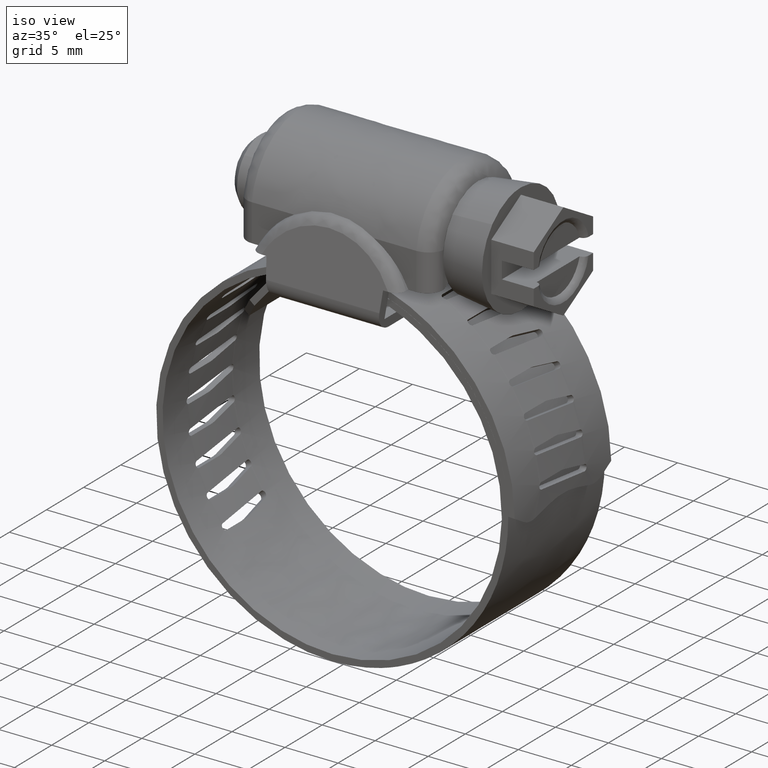
[diagram: clean part render]
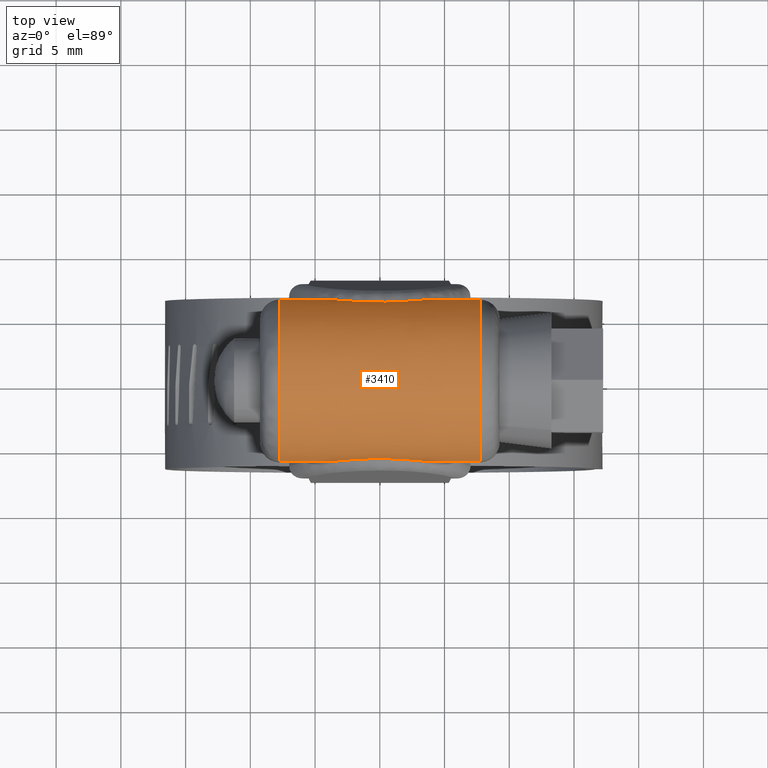
[diagram: tour spotlight — one face highlighted and labeled with its STEP entity id]
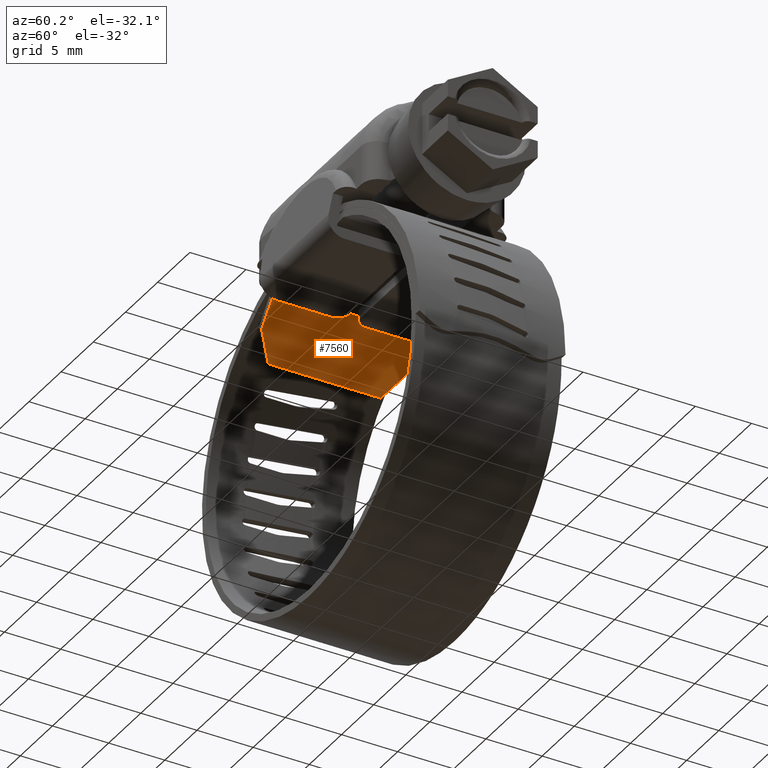
[diagram: tour spotlight — one face highlighted and labeled with its STEP entity id]
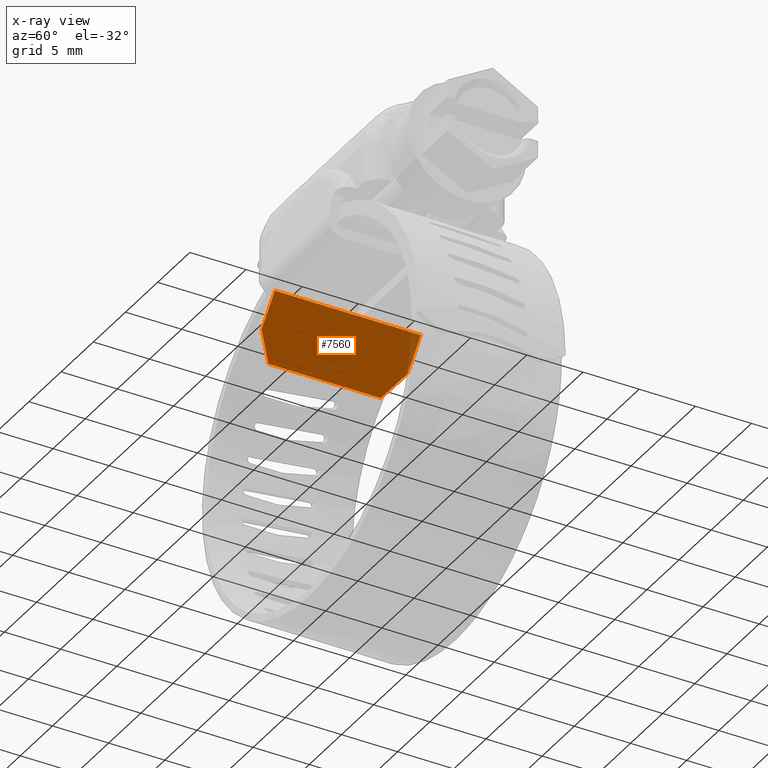
[diagram: x-ray of the same camera — body ghosted, this tour face saturated]
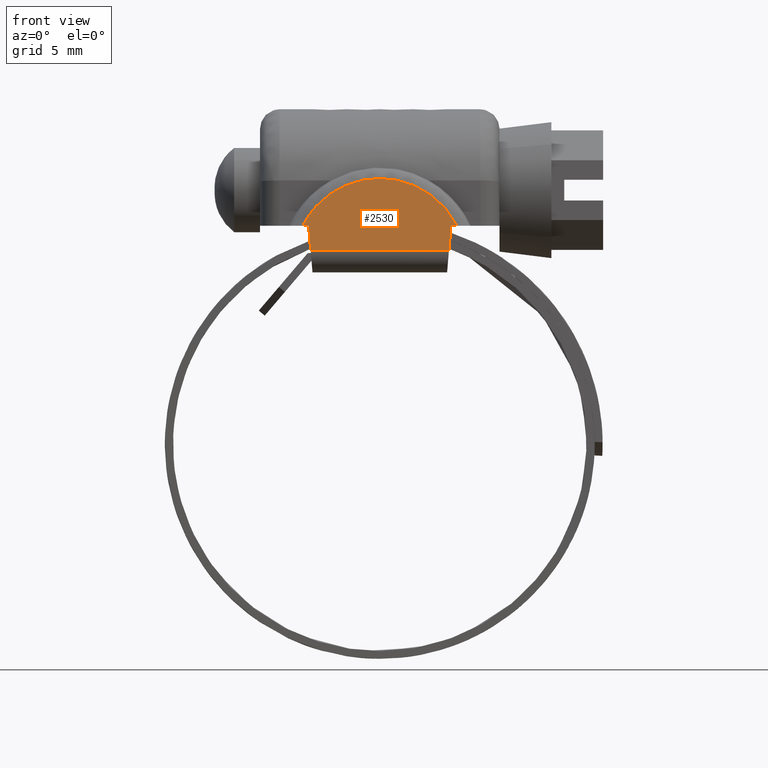
[diagram: tour spotlight — one face highlighted and labeled with its STEP entity id]
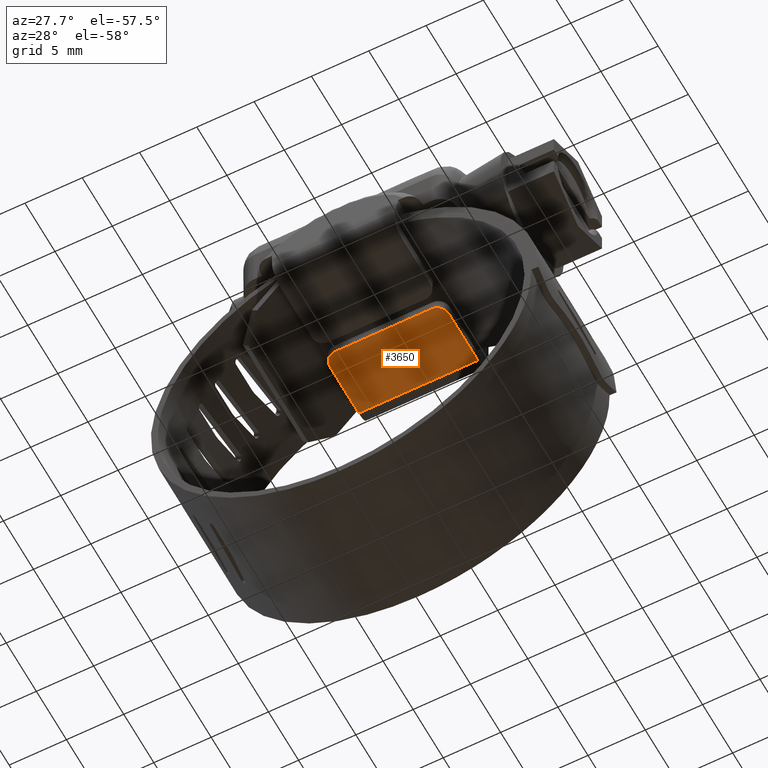
[diagram: tour spotlight — one face highlighted and labeled with its STEP entity id]
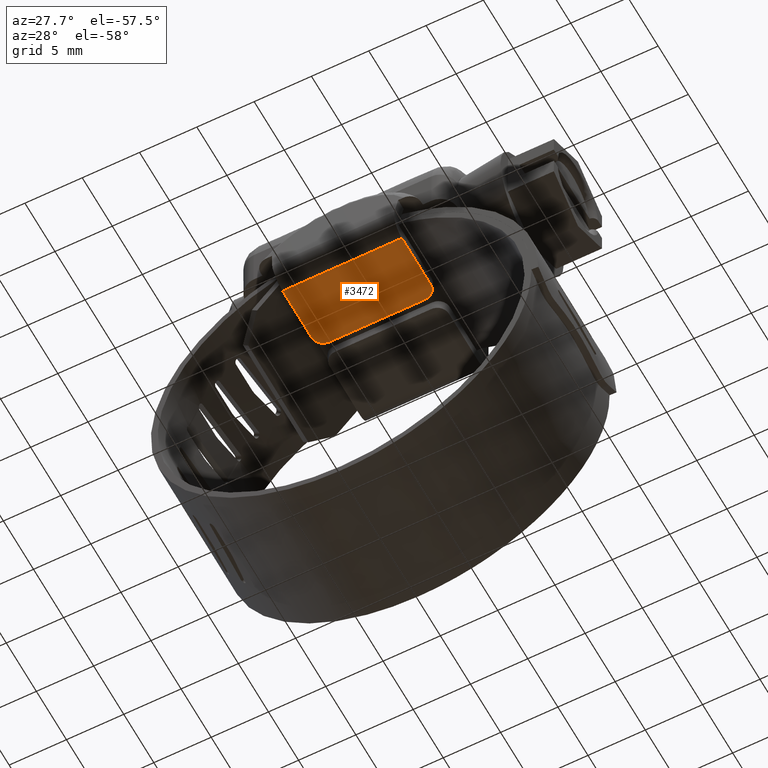
[diagram: tour spotlight — one face highlighted and labeled with its STEP entity id]
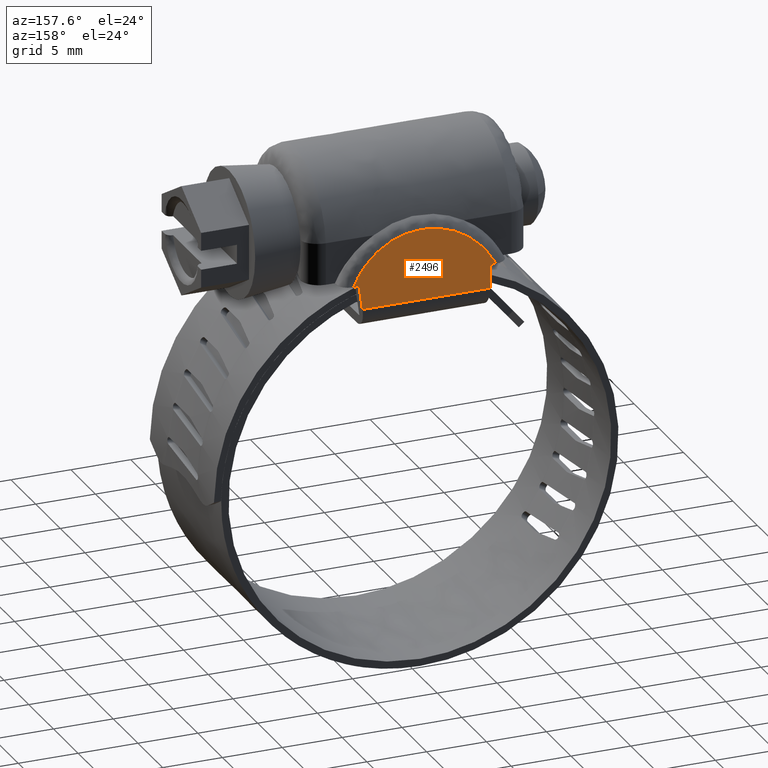
[diagram: tour spotlight — one face highlighted and labeled with its STEP entity id]
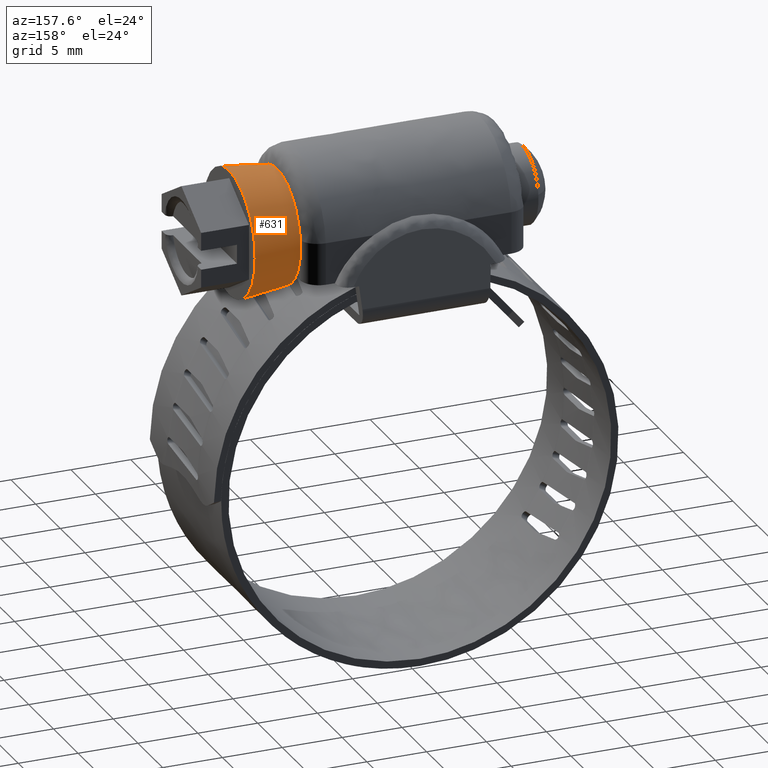
[diagram: tour spotlight — one face highlighted and labeled with its STEP entity id]
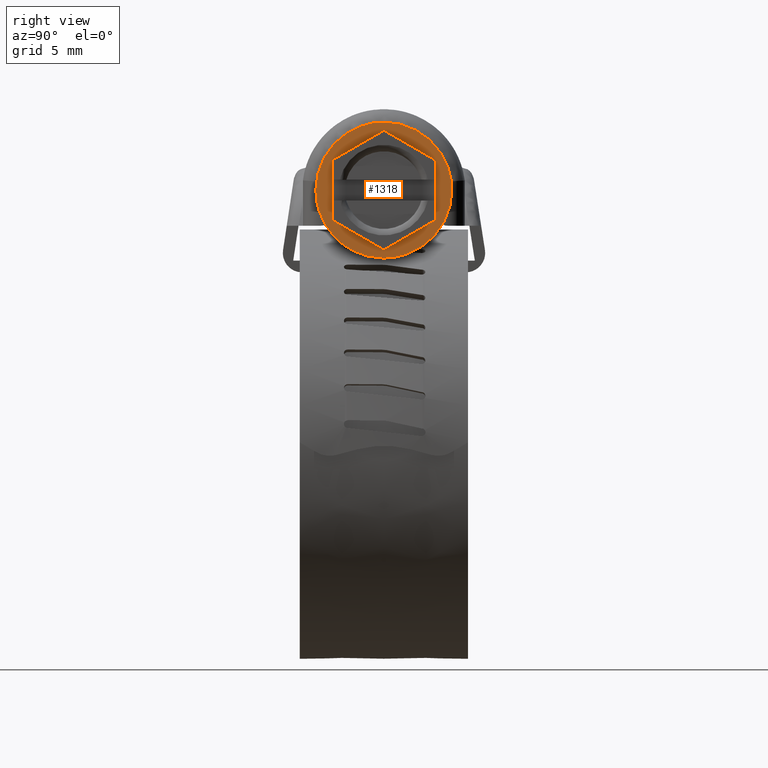
[diagram: tour spotlight — one face highlighted and labeled with its STEP entity id]
A machine part: a face-by-face anatomy tour. The part has 206 B-rep faces; the first image is the clean iso view, then the 8 largest visible faces are spotlighted one at a time (largest first), each with its STEP entity span.

Face 1 — top view, entity #3410. In plain terms, the highlighted face is a freeform B-spline surface patch.
Definition (entity closure, byte-faithful):
#1661=CARTESIAN_POINT('',(-3.766983245140355,-6.249999633170980,16.577121365332999));
#1662=VERTEX_POINT('',#1661);
#1774=CARTESIAN_POINT('',(3.766983245140355,-6.249999633170980,16.577121365332999));
#1775=VERTEX_POINT('',#1774);
#1783=CARTESIAN_POINT('',(-3.766983245140355,-6.249999633170980,16.577121365332999));
#1784=CARTESIAN_POINT('',(-3.478831496909463,-6.229233364205876,16.739128154655241));
#1785=CARTESIAN_POINT('',(-3.183300914378316,-6.204570008767342,16.882148632117168));
#1786=CARTESIAN_POINT('',(-2.576808892005547,-6.155228093785371,17.130036402120751));
#1787=CARTESIAN_POINT('',(-2.265836634976381,-6.130547265610534,17.234876518080021));
#1788=CARTESIAN_POINT('',(-1.866693869858923,-6.103751019367197,17.340919599546389));
#1789=CARTESIAN_POINT('',(-1.786486061357972,-6.098601892761600,17.360832235081901));
#1790=CARTESIAN_POINT('',(-1.626024433981459,-6.088846631766009,17.397907521513719));
#1791=CARTESIAN_POINT('',(-1.545665445436081,-6.084233341677489,17.415098594033861));
#1792=CARTESIAN_POINT('',(-1.304205280765513,-6.071283367227001,17.462673344400940));
#1793=CARTESIAN_POINT('',(-1.142721123573348,-6.063841070201703,17.489062200122419));
#1794=CARTESIAN_POINT('',(-0.656740159557208,-6.045693866015511,17.552452619586020));
#1795=CARTESIAN_POINT('',(-0.330719706065374,-6.039235105378521,17.573749912531952));
#1796=CARTESIAN_POINT('',(0.161419786626403,-6.039184386857341,17.573920279852860));
#1797=CARTESIAN_POINT('',(0.325985564198005,-6.040757096750824,17.568663909435760));
#1798=CARTESIAN_POINT('',(0.573631993009526,-6.045493593546023,17.552599085312352));
#1799=CARTESIAN_POINT('',(0.656241352251390,-6.047467871330164,17.545878086249040));
#1800=CARTESIAN_POINT('',(0.820475667525163,-6.052146371881373,17.529813216404978));
#1801=CARTESIAN_POINT('',(0.902253417529042,-6.054853191231874,17.520460500731989));
#1802=CARTESIAN_POINT('',(1.309472620170547,-6.070102513587345,17.467179843144940));
#1803=CARTESIAN_POINT('',(1.629917328613110,-6.087864840067938,17.403768142886481));
#1804=CARTESIAN_POINT('',(2.260627271324118,-6.130187882777850,17.236317853900928));
#1805=CARTESIAN_POINT('',(2.570888658853245,-6.154751397064583,17.132263968381999));
#1806=CARTESIAN_POINT('',(3.028839962946760,-6.192001216301294,16.945374784512900));
#1807=CARTESIAN_POINT('',(3.179777303179230,-6.204428908061730,16.878107182095970));
#1808=CARTESIAN_POINT('',(3.476686108309584,-6.228226204638982,16.734530296358798));
#1809=CARTESIAN_POINT('',(3.622917516897374,-6.239617229855899,16.658119055673680));
#1810=CARTESIAN_POINT('',(3.766983245140355,-6.249999633170980,16.577121365332999));
#1811=B_SPLINE_CURVE_WITH_KNOTS('',3,(#1783,#1784,#1785,#1786,#1787,#1788,#1789,#1790,#1791,#1792,#1793,#1794,#1795,#1796,#1797,#1798,#1799,#1800,#1801,#1802,#1803,#1804,#1805,#1806,#1807,#1808,#1809,#1810),.UNSPECIFIED.,.F.,.U.,(4,2,2,2,2,2,2,2,2,2,2,2,2,4),(0.000000039906754,0.125000000000001,0.250000000000001,0.281250000000001,0.312500000000001,0.375000000000001,0.500000000000001,0.562500000000001,0.593750000000001,0.625000000000000,0.750000000000000,0.875000000000000,0.937500000000000,0.999999982435041),.UNSPECIFIED.);
#1812=EDGE_CURVE('',#1662,#1775,#1811,.T.);
#2004=CARTESIAN_POINT('',(-3.767731017053410,6.249999633170980,16.577121365332999));
#2005=VERTEX_POINT('',#2004);
#2013=CARTESIAN_POINT('',(3.767731017053410,6.249999633170980,16.577121365332999));
#2014=VERTEX_POINT('',#2013);
#2015=CARTESIAN_POINT('',(3.767731017053410,6.249999633170980,16.577121365332999));
#2016=CARTESIAN_POINT('',(3.479497733507518,6.229237709105721,16.739094258291651));
#2017=CARTESIAN_POINT('',(3.183884050679524,6.204583222070062,16.882071151559519));
#2018=CARTESIAN_POINT('',(2.577243934754033,6.155257050299552,17.129902017543969));
#2019=CARTESIAN_POINT('',(2.266206147951572,6.130582696073145,17.234727400421061));
#2020=CARTESIAN_POINT('',(1.866991587071622,6.103790234875439,17.340766625409820));
#2021=CARTESIAN_POINT('',(1.786771470837745,6.098641773924828,17.360678763914390));
#2022=CARTESIAN_POINT('',(1.626284023453253,6.088887352445290,17.397754646818960));
#2023=CARTESIAN_POINT('',(1.545912167912042,6.084274283725710,17.414946625872581));
#2024=CARTESIAN_POINT('',(1.304413467685331,6.071324521135703,17.462525250646319));
#2025=CARTESIAN_POINT('',(1.142903704963588,6.063881763437935,17.488918202284239));
#2026=CARTESIAN_POINT('',(0.656845720759579,6.045732683460419,17.552320710697689));
#2027=CARTESIAN_POINT('',(0.330773580215899,6.039272260056391,17.573625094178219));
#2028=CARTESIAN_POINT('',(-0.161444854682112,6.039221514861135,17.573795563976041));
#2029=CARTESIAN_POINT('',(-0.326037165918512,6.040794574774885,17.568537633646770));
#2030=CARTESIAN_POINT('',(-0.573723678317318,6.045531948734165,17.552468569044731));
#2031=CARTESIAN_POINT('',(-0.656346915220894,6.047506583847865,17.545745815254921));
#2032=CARTESIAN_POINT('',(-0.820608736505639,6.052185828560140,17.529677062264259));
#2033=CARTESIAN_POINT('',(-0.902400225254582,6.054893035526168,17.520322214310770));
#2034=CARTESIAN_POINT('',(-1.309688241338812,6.070144131077192,17.467030690373669));
#2035=CARTESIAN_POINT('',(-1.630188360697988,6.087907219618561,17.403609516303838));
#2036=CARTESIAN_POINT('',(-2.261015828429809,6.130224851233542,17.236162525183840));
#2037=CARTESIAN_POINT('',(-2.571339628588592,6.154781890041164,17.132122576332680));
#2038=CARTESIAN_POINT('',(-3.029391561703454,6.192018955972971,16.945279975485011));
#2039=CARTESIAN_POINT('',(-3.180366883374803,6.204442304778198,16.878030458831791));
#2040=CARTESIAN_POINT('',(-3.477353567144340,6.228231820699066,16.734492306269210));
#2041=CARTESIAN_POINT('',(-3.623625442391634,6.239619468304403,16.658101592606808));
#2042=CARTESIAN_POINT('',(-3.767731017053410,6.249999633170980,16.577121365332999));
#2043=B_SPLINE_CURVE_WITH_KNOTS('',3,(#2015,#2016,#2017,#2018,#2019,#2020,#2021,#2022,#2023,#2024,#2025,#2026,#2027,#2028,#2029,#2030,#2031,#2032,#2033,#2034,#2035,#2036,#2037,#2038,#2039,#2040,#2041,#2042),.UNSPECIFIED.,.F.,.U.,(4,2,2,2,2,2,2,2,2,2,2,2,2,4),(0.000000039879375,0.125000000000000,0.250000000000001,0.281250000000000,0.312500000000000,0.375000000000000,0.500000000000000,0.562500000000000,0.593749999999999,0.624999999999999,0.749999999999999,0.875000000000000,0.937500000000000,0.999999982445228),.UNSPECIFIED.);
#2044=EDGE_CURVE('',#2014,#2005,#2043,.T.);
#2565=CARTESIAN_POINT('',(7.750000000000000,6.249999633170980,16.577121365332999));
#2566=VERTEX_POINT('',#2565);
#2627=CARTESIAN_POINT('',(7.750000000000000,-6.249999633170980,16.577121365332999));
#2628=VERTEX_POINT('',#2627);
#2667=CARTESIAN_POINT('',(7.750000000000000,-6.249999633170980,16.577121365332999));
#2668=CARTESIAN_POINT('',(7.749999999999985,-6.191361498938469,17.035215888718390));
#2669=CARTESIAN_POINT('',(7.750000000000028,-5.989488349782191,17.868884798285869));
#2670=CARTESIAN_POINT('',(7.749999999999957,-5.482488959078462,18.944716990335390));
#2671=CARTESIAN_POINT('',(7.750000000000052,-4.840670454219307,19.858439458823391));
#2672=CARTESIAN_POINT('',(7.749999999999986,-4.151832959472547,20.548791179792140));
#2673=CARTESIAN_POINT('',(7.750000000000001,-3.425593229200780,21.083013219870850));
#2674=CARTESIAN_POINT('',(7.750000000000007,-2.805369063852079,21.432430868053469));
#2675=CARTESIAN_POINT('',(7.750000000000000,-2.085632926104141,21.739382091490370));
#2676=CARTESIAN_POINT('',(7.750000000000002,-1.354971716763073,21.948756704132030));
#2677=CARTESIAN_POINT('',(7.749999999999991,-0.416309008778255,22.087361313920479));
#2678=CARTESIAN_POINT('',(7.750000000000026,0.558916471133459,22.084633866860049));
#2679=CARTESIAN_POINT('',(7.749999999999944,1.564633897148409,21.904083302262730));
#2680=CARTESIAN_POINT('',(7.750000000000216,2.486323233499222,21.591474862847939));
#2681=CARTESIAN_POINT('',(7.749999999999378,3.394367124163758,21.122919193228000));
#2682=CARTESIAN_POINT('',(7.750000000000258,4.141654776364329,20.553416026637819));
#2683=CARTESIAN_POINT('',(7.749999999999929,4.757794437489512,19.928885357749909));
#2684=CARTESIAN_POINT('',(7.750000000000022,5.196156556716762,19.367657746879480));
#2685=CARTESIAN_POINT('',(7.749999999999995,5.618167799830007,18.666616203691390));
#2686=CARTESIAN_POINT('',(7.749999999999998,6.015551382663539,17.764776173419410));
#2687=CARTESIAN_POINT('',(7.750000000000012,6.192867702430622,17.023467711748669));
#2688=CARTESIAN_POINT('',(7.750000000000000,6.249999633170980,16.577121365332999));
#2689=B_SPLINE_CURVE_WITH_KNOTS('',3,(#2667,#2668,#2669,#2670,#2671,#2672,#2673,#2674,#2675,#2676,#2677,#2678,#2679,#2680,#2681,#2682,#2683,#2684,#2685,#2686,#2687,#2688),.UNSPECIFIED.,.F.,.U.,(4,1,1,1,1,1,1,1,1,1,1,1,1,1,1,1,1,1,1,4),(0.000000073988357,1.385476451111508,2.557826836269541,3.552534895520624,4.724879678134730,5.470920065431878,6.252480042019126,6.856420115251867,7.815594802059747,8.526104895980982,9.698407983762291,10.728669389980590,11.581265453419000,12.611513813169401,13.783856818617860,14.387794005654509,15.240402887159910,15.915391535059690,16.839060117251051,18.189005434488259),.UNSPECIFIED.);
#2690=EDGE_CURVE('',#2628,#2566,#2689,.T.);
#2783=CARTESIAN_POINT('',(-7.749999999999810,6.249999633170980,16.577121365332999));
#2784=VERTEX_POINT('',#2783);
#2848=CARTESIAN_POINT('',(-7.750000000000000,-6.249999633170980,16.577121365332999));
#2849=VERTEX_POINT('',#2848);
#2863=CARTESIAN_POINT('',(-7.749999999999810,6.249999633170980,16.577121365332999));
#2864=CARTESIAN_POINT('',(-7.749999999999816,6.191370026030643,17.035220298823400));
#2865=CARTESIAN_POINT('',(-7.749999999999824,6.031515346219677,17.695181861059279));
#2866=CARTESIAN_POINT('',(-7.749999999999869,5.636201534542860,18.635150247355131));
#2867=CARTESIAN_POINT('',(-7.749999999999808,5.209311966792002,19.362742183784309));
#2868=CARTESIAN_POINT('',(-7.749999999999973,4.612245700071366,20.101050796781330));
#2869=CARTESIAN_POINT('',(-7.749999999999875,3.828060732060838,20.827365865327419));
#2870=CARTESIAN_POINT('',(-7.749999999999969,2.839469265705405,21.448498316912762));
#2871=CARTESIAN_POINT('',(-7.749999999999961,1.815993887175616,21.834638772577360));
#2872=CARTESIAN_POINT('',(-7.749999999999992,0.969303700272329,22.016332237898968));
#2873=CARTESIAN_POINT('',(-7.749999999999996,0.166495732775243,22.093522755549930));
#2874=CARTESIAN_POINT('',(-7.750000000000043,-0.771084462167596,22.059183994113010));
#2875=CARTESIAN_POINT('',(-7.749999999999920,-1.667811546803764,21.874623966151379));
#2876=CARTESIAN_POINT('',(-7.750000000000296,-2.549670485758415,21.558779037282839));
#2877=CARTESIAN_POINT('',(-7.749999999999326,-3.394367244678316,21.122921257049128));
#2878=CARTESIAN_POINT('',(-7.750000000000328,-4.141654810314975,20.553415488318059));
#2879=CARTESIAN_POINT('',(-7.749999999999965,-4.757794433205571,19.928885439264558));
#2880=CARTESIAN_POINT('',(-7.750000000000045,-5.196156556259774,19.367657745778960));
#2881=CARTESIAN_POINT('',(-7.750000000000029,-5.618167799973506,18.666616204036970));
#2882=CARTESIAN_POINT('',(-7.750000000000009,-6.015551382578757,17.764776173215228));
#2883=CARTESIAN_POINT('',(-7.750000000000013,-6.192867702458857,17.023467711816661));
#2884=CARTESIAN_POINT('',(-7.750000000000000,-6.249999633170980,16.577121365332999));
#2885=B_SPLINE_CURVE_WITH_KNOTS('',3,(#2863,#2864,#2865,#2866,#2867,#2868,#2869,#2870,#2871,#2872,#2873,#2874,#2875,#2876,#2877,#2878,#2879,#2880,#2881,#2882,#2883,#2884),.UNSPECIFIED.,.F.,.U.,(4,1,1,1,1,1,1,1,1,1,1,1,1,1,1,1,1,1,1,4),(0.000000073988357,1.385476451111508,2.024929389840374,3.055178774263153,3.907790582367570,4.866981349017484,6.252480042019126,7.389305311236283,8.135331463240078,8.845826565217863,9.804999452609833,10.941813114352110,11.581265453419000,12.611513813169401,13.783856818617860,14.387794005654509,15.240402887159910,15.915391535059690,16.839060117251051,18.189005434488259),.UNSPECIFIED.);
#2886=EDGE_CURVE('',#2784,#2849,#2885,.T.);
#3341=CARTESIAN_POINT('',(7.750000000000000,-6.249999633170980,16.577121365332999));
#3342=CARTESIAN_POINT('',(3.766983245140355,-6.249999633170980,16.577121365332999));
#3343=QUASI_UNIFORM_CURVE('',1,(#3341,#3342),.UNSPECIFIED.,.F.,.U.);
#3344=EDGE_CURVE('',#2628,#1775,#3343,.T.);
#3364=CARTESIAN_POINT('',(-3.766983245140355,-6.249999633170980,16.577121365332999));
#3365=CARTESIAN_POINT('',(-7.750000000000000,-6.249999633170980,16.577121365332999));
#3366=QUASI_UNIFORM_CURVE('',1,(#3364,#3365),.UNSPECIFIED.,.F.,.U.);
#3367=EDGE_CURVE('',#1662,#2849,#3366,.T.);
#3374=CARTESIAN_POINT('',(8.137500000000001,6.256752797267127,16.522550016851341));
#3375=CARTESIAN_POINT('',(-8.147187500000040,6.256752797267127,16.522550016851341));
#3376=CARTESIAN_POINT('',(8.137500000000001,5.578620881440008,22.205784116358405));
#3377=CARTESIAN_POINT('',(-8.147187500000040,5.578620881440008,22.205784116358405));
#3378=CARTESIAN_POINT('',(8.137500000000001,-0.143444799420466,22.075488034368480));
#3379=CARTESIAN_POINT('',(-8.147187500000040,-0.143444799420466,22.075488034368480));
#3380=CARTESIAN_POINT('',(8.137500000000001,-5.865510480280938,21.945191952378561));
#3381=CARTESIAN_POINT('',(-8.147187500000040,-5.865510480280938,21.945191952378561));
#3382=CARTESIAN_POINT('',(8.137500000000001,-6.284249946758260,16.236981200813990));
#3383=CARTESIAN_POINT('',(-8.147187500000040,-6.284249946758260,16.236981200813990));
#3391=(BOUNDED_SURFACE()B_SPLINE_SURFACE(1,2,((#3374,#3376,#3378,#3380,#3382),(#3375,#3377,#3379,#3381,#3383)),.UNSPECIFIED.,.F.,.F.,.U.)B_SPLINE_SURFACE_WITH_KNOTS((2,2),(3,2,3),(0.0,16.284687500000040),(0.0,9.738261264178698,19.476522528357400),.UNSPECIFIED.)GEOMETRIC_REPRESENTATION_ITEM()RATIONAL_B_SPLINE_SURFACE(((1.0,0.740218127486832,1.0,0.740218127486832,1.0),(1.0,0.740218127486832,1.0,0.740218127486832,1.0)))REPRESENTATION_ITEM('')SURFACE());
#3392=CARTESIAN_POINT('',(7.750000000000000,6.249999633170980,16.577121365332999));
#3393=CARTESIAN_POINT('',(3.767731017053410,6.249999633170980,16.577121365332999));
#3394=QUASI_UNIFORM_CURVE('',1,(#3392,#3393),.UNSPECIFIED.,.F.,.U.);
#3395=EDGE_CURVE('',#2566,#2014,#3394,.T.);
#3396=ORIENTED_EDGE('',*,*,#3395,.T.);
#3397=ORIENTED_EDGE('',*,*,#2044,.T.);
#3398=CARTESIAN_POINT('',(-3.767731017053410,6.249999633170980,16.577121365332999));
#3399=CARTESIAN_POINT('',(-7.749999999999810,6.249999633170980,16.577121365332999));
#3400=QUASI_UNIFORM_CURVE('',1,(#3398,#3399),.UNSPECIFIED.,.F.,.U.);
#3401=EDGE_CURVE('',#2005,#2784,#3400,.T.);
#3402=ORIENTED_EDGE('',*,*,#3401,.T.);
#3403=ORIENTED_EDGE('',*,*,#2886,.T.);
#3404=ORIENTED_EDGE('',*,*,#3367,.F.);
#3405=ORIENTED_EDGE('',*,*,#1812,.T.);
#3406=ORIENTED_EDGE('',*,*,#3344,.F.);
#3407=ORIENTED_EDGE('',*,*,#2690,.T.);
#3408=EDGE_LOOP('',(#3396,#3397,#3402,#3403,#3404,#3405,#3406,#3407));
#3409=FACE_OUTER_BOUND('',#3408,.T.);
#3410=ADVANCED_FACE('',(#3409),#3391,.T.);

Face 2 — auxiliary view, entity #7560. An x-ray twin of the same camera follows (body ghosted, this face saturated) — the face is partly hidden behind the body. In plain terms, the highlighted face is a freeform B-spline surface patch.
Definition (entity closure, byte-faithful):
#6838=CARTESIAN_POINT('',(-7.334361413864390,6.500000000000000,7.958639061497649));
#6839=VERTEX_POINT('',#6838);
#6845=CARTESIAN_POINT('',(-8.890333000000000,5.0,6.131359000000151));
#6846=VERTEX_POINT('',#6845);
#6847=CARTESIAN_POINT('',(-8.890333000000000,5.0,6.131359000000151));
#6848=CARTESIAN_POINT('',(-7.334361413864390,6.500000000000000,7.958639061497649));
#6849=QUASI_UNIFORM_CURVE('',1,(#6847,#6848),.UNSPECIFIED.,.F.,.U.);
#6850=EDGE_CURVE('',#6846,#6839,#6849,.T.);
#6874=CARTESIAN_POINT('',(-8.890333000000000,-5.0,6.131359000000190));
#6875=VERTEX_POINT('',#6874);
#6881=CARTESIAN_POINT('',(-7.334361413863970,-6.500000000000250,7.958639061498129));
#6882=VERTEX_POINT('',#6881);
#6883=CARTESIAN_POINT('',(-7.334361413863970,-6.500000000000250,7.958639061498129));
#6884=CARTESIAN_POINT('',(-8.890333000000000,-5.0,6.131359000000190));
#6885=QUASI_UNIFORM_CURVE('',1,(#6883,#6884),.UNSPECIFIED.,.F.,.U.);
#6886=EDGE_CURVE('',#6882,#6875,#6885,.T.);
#7512=CARTESIAN_POINT('',(-5.275000000000000,-6.500000000000000,10.377083000000200));
#7513=VERTEX_POINT('',#7512);
#7519=CARTESIAN_POINT('',(-5.275000000000000,6.500000000000000,10.377083000000200));
#7520=VERTEX_POINT('',#7519);
#7521=CARTESIAN_POINT('',(-5.275000000000000,6.500000000000000,10.377083000000200));
#7522=CARTESIAN_POINT('',(-5.275000000000000,-6.500000000000000,10.377083000000200));
#7523=QUASI_UNIFORM_CURVE('',1,(#7521,#7522),.UNSPECIFIED.,.F.,.U.);
#7524=EDGE_CURVE('',#7520,#7513,#7523,.T.);
#7535=CARTESIAN_POINT('',(-5.094414259409902,-7.149349974803739,10.589156746147930));
#7536=CARTESIAN_POINT('',(-9.070918966855336,-7.149349974803739,5.919284988134363));
#7537=CARTESIAN_POINT('',(-5.094414259409902,7.149350323490664,10.589156746147930));
#7538=CARTESIAN_POINT('',(-9.070918966855336,7.149350323490664,5.919284988134363));
#7539=B_SPLINE_SURFACE_WITH_KNOTS('',1,1,((#7535,#7537),(#7536,#7538)),.UNSPECIFIED.,.F.,.F.,.U.,(2,2),(2,2),(0.0,6.133538287532608),(0.0,14.298700298294399),.UNSPECIFIED.);
#7540=CARTESIAN_POINT('',(-8.890333000000000,5.0,6.131359000000151));
#7541=CARTESIAN_POINT('',(-8.890333000000000,-5.0,6.131359000000190));
#7542=QUASI_UNIFORM_CURVE('',1,(#7540,#7541),.UNSPECIFIED.,.F.,.U.);
#7543=EDGE_CURVE('',#6846,#6875,#7542,.T.);
#7544=ORIENTED_EDGE('',*,*,#7543,.F.);
#7545=ORIENTED_EDGE('',*,*,#6850,.T.);
#7546=CARTESIAN_POINT('',(-7.334361413864390,6.500000000000000,7.958639061497649));
#7547=CARTESIAN_POINT('',(-5.275000000000000,6.500000000000000,10.377083000000200));
#7548=QUASI_UNIFORM_CURVE('',1,(#7546,#7547),.UNSPECIFIED.,.F.,.U.);
#7549=EDGE_CURVE('',#6839,#7520,#7548,.T.);
#7550=ORIENTED_EDGE('',*,*,#7549,.T.);
#7551=ORIENTED_EDGE('',*,*,#7524,.T.);
#7552=CARTESIAN_POINT('',(-7.334361413863970,-6.500000000000250,7.958639061498129));
#7553=CARTESIAN_POINT('',(-5.275000000000000,-6.500000000000000,10.377083000000200));
#7554=QUASI_UNIFORM_CURVE('',1,(#7552,#7553),.UNSPECIFIED.,.F.,.U.);
#7555=EDGE_CURVE('',#6882,#7513,#7554,.T.);
#7556=ORIENTED_EDGE('',*,*,#7555,.F.);
#7557=ORIENTED_EDGE('',*,*,#6886,.T.);
#7558=EDGE_LOOP('',(#7544,#7545,#7550,#7551,#7556,#7557));
#7559=FACE_OUTER_BOUND('',#7558,.T.);
#7560=ADVANCED_FACE('',(#7559),#7539,.T.);

Face 3 — front view, entity #2530. In plain terms, the highlighted face is a freeform B-spline surface patch.
Definition (entity closure, byte-faithful):
#1454=CARTESIAN_POINT('',(-5.343755088336830,-7.786144508388070,11.202144060042160));
#1455=VERTEX_POINT('',#1454);
#1476=CARTESIAN_POINT('',(5.343755088336931,-7.786144508388049,11.202144060042141));
#1477=VERTEX_POINT('',#1476);
#1492=CARTESIAN_POINT('',(-5.343755088336830,-7.786144508388070,11.202144060042160));
#1493=CARTESIAN_POINT('',(5.343755088336931,-7.786144508388049,11.202144060042141));
#1494=QUASI_UNIFORM_CURVE('',1,(#1492,#1493),.UNSPECIFIED.,.F.,.U.);
#1495=EDGE_CURVE('',#1455,#1477,#1494,.T.);
#1687=CARTESIAN_POINT('',(-5.962146346480231,-7.501606321312799,13.077083000000201));
#1688=VERTEX_POINT('',#1687);
#1712=CARTESIAN_POINT('',(5.962146346480231,-7.501606321312799,13.077083000000201));
#1713=VERTEX_POINT('',#1712);
#1714=CARTESIAN_POINT('',(5.962146346480231,-7.501606321312799,13.077083000000201));
#1715=CARTESIAN_POINT('',(4.098355137342957,-6.947681100976019,16.727123706694861));
#1716=CARTESIAN_POINT('',(7.585472E-015,-6.947681100976018,16.727123706694851));
#1717=CARTESIAN_POINT('',(-4.098355137342947,-6.947681100976019,16.727123706694861));
#1718=CARTESIAN_POINT('',(-5.962146346480231,-7.501606321312799,13.077083000000201));
#1726=(BOUNDED_CURVE()B_SPLINE_CURVE(2,(#1714,#1715,#1716,#1717,#1718),.UNSPECIFIED.,.F.,.U.)B_SPLINE_CURVE_WITH_KNOTS((3,2,3),(0.0,0.500000000000000,1.0),.UNSPECIFIED.)CURVE()GEOMETRIC_REPRESENTATION_ITEM()RATIONAL_B_SPLINE_CURVE((1.0,0.852867418584550,1.0,0.852867418584550,1.0))REPRESENTATION_ITEM(''));
#1727=EDGE_CURVE('',#1713,#1688,#1726,.T.);
#2497=CARTESIAN_POINT('',(-6.557764743382014,-6.905799915372400,17.003096034159320));
#2498=CARTESIAN_POINT('',(-6.557764743382014,-7.828025836424293,10.926170794031510));
#2499=CARTESIAN_POINT('',(6.557765063216467,-6.905799915372400,17.003096034159320));
#2500=CARTESIAN_POINT('',(6.557765063216467,-7.828025836424293,10.926170794031510));
#2501=B_SPLINE_SURFACE_WITH_KNOTS('',1,1,((#2497,#2499),(#2498,#2500)),.UNSPECIFIED.,.F.,.F.,.U.,(2,2),(2,2),(0.0,6.146504781057478),(0.0,13.115529806598479),.UNSPECIFIED.);
#2502=CARTESIAN_POINT('',(-5.500000000000000,-7.501606321312620,13.077083000000201));
#2503=VERTEX_POINT('',#2502);
#2504=CARTESIAN_POINT('',(-5.500000000000000,-7.501606321312620,13.077083000000201));
#2505=CARTESIAN_POINT('',(-5.343755088336830,-7.786144508388070,11.202144060042160));
#2506=QUASI_UNIFORM_CURVE('',1,(#2504,#2505),.UNSPECIFIED.,.F.,.U.);
#2507=EDGE_CURVE('',#2503,#1455,#2506,.T.);
#2508=ORIENTED_EDGE('',*,*,#2507,.T.);
#2509=ORIENTED_EDGE('',*,*,#1495,.T.);
#2510=CARTESIAN_POINT('',(5.500000000000100,-7.501606321312799,13.077083000000201));
#2511=VERTEX_POINT('',#2510);
#2512=CARTESIAN_POINT('',(5.343755088336931,-7.786144508388049,11.202144060042141));
#2513=CARTESIAN_POINT('',(5.500000000000100,-7.501606321312799,13.077083000000201));
#2514=QUASI_UNIFORM_CURVE('',1,(#2512,#2513),.UNSPECIFIED.,.F.,.U.);
#2515=EDGE_CURVE('',#1477,#2511,#2514,.T.);
#2516=ORIENTED_EDGE('',*,*,#2515,.T.);
#2517=CARTESIAN_POINT('',(5.500000000000100,-7.501606321312799,13.077083000000201));
#2518=CARTESIAN_POINT('',(5.962146346480231,-7.501606321312799,13.077083000000201));
#2519=QUASI_UNIFORM_CURVE('',1,(#2517,#2518),.UNSPECIFIED.,.F.,.U.);
#2520=EDGE_CURVE('',#2511,#1713,#2519,.T.);
#2521=ORIENTED_EDGE('',*,*,#2520,.T.);
#2522=ORIENTED_EDGE('',*,*,#1727,.T.);
#2523=CARTESIAN_POINT('',(-5.962146346480231,-7.501606321312799,13.077083000000201));
#2524=CARTESIAN_POINT('',(-5.500000000000000,-7.501606321312620,13.077083000000201));
#2525=QUASI_UNIFORM_CURVE('',1,(#2523,#2524),.UNSPECIFIED.,.F.,.U.);
#2526=EDGE_CURVE('',#1688,#2503,#2525,.T.);
#2527=ORIENTED_EDGE('',*,*,#2526,.T.);
#2528=EDGE_LOOP('',(#2508,#2509,#2516,#2521,#2522,#2527));
#2529=FACE_OUTER_BOUND('',#2528,.T.);
#2530=ADVANCED_FACE('',(#2529),#2501,.T.);

Face 4 — auxiliary view, entity #3650. In plain terms, the highlighted face is a freeform B-spline surface patch.
Definition (entity closure, byte-faithful):
#1516=CARTESIAN_POINT('',(-5.200000000000000,6.325492857920280,9.477083000000221));
#1517=VERTEX_POINT('',#1516);
#1538=CARTESIAN_POINT('',(5.200000000000100,6.325492857920280,9.477083000000221));
#1539=VERTEX_POINT('',#1538);
#1553=CARTESIAN_POINT('',(-5.200000000000000,6.325492857920280,9.477083000000221));
#1554=CARTESIAN_POINT('',(5.200000000000100,6.325492857920280,9.477083000000221));
#1555=QUASI_UNIFORM_CURVE('',1,(#1553,#1554),.UNSPECIFIED.,.F.,.U.);
#1556=EDGE_CURVE('',#1517,#1539,#1555,.T.);
#2146=CARTESIAN_POINT('',(-4.196533785100645,0.500000000000056,9.477083000000221));
#2147=VERTEX_POINT('',#2146);
#2148=CARTESIAN_POINT('',(-5.200000000000000,1.500000000000055,9.477083000000221));
#2149=VERTEX_POINT('',#2148);
#2150=CARTESIAN_POINT('',(-4.196533785100645,0.500000000000056,9.477083000000221));
#2151=CARTESIAN_POINT('',(-4.294885511055221,0.499776815523734,9.477083000000199));
#2152=CARTESIAN_POINT('',(-4.458820967610787,0.523849263572069,9.477083000000270));
#2153=CARTESIAN_POINT('',(-4.694870704848788,0.621121346810405,9.477083000000201));
#2154=CARTESIAN_POINT('',(-4.876076656401539,0.751606168953833,9.477083000000222));
#2155=CARTESIAN_POINT('',(-5.021583754378375,0.919746399935342,9.477083000000222));
#2156=CARTESIAN_POINT('',(-5.155984352986096,1.155965480928271,9.477083000000228));
#2157=CARTESIAN_POINT('',(-5.199970415251690,1.360633878201256,9.477083000000238));
#2158=CARTESIAN_POINT('',(-5.200000000000000,1.500000000000055,9.477083000000221));
#2159=B_SPLINE_CURVE_WITH_KNOTS('',3,(#2150,#2151,#2152,#2153,#2154,#2155,#2156,#2157,#2158),.UNSPECIFIED.,.F.,.U.,(4,1,1,1,1,1,4),(0.000000040570204,0.295051589868795,0.491757992146085,0.762228596524706,0.958917652908201,1.155629499953784,1.573624782508448),.UNSPECIFIED.);
#2160=EDGE_CURVE('',#2147,#2149,#2159,.T.);
#2280=CARTESIAN_POINT('',(4.196533785100741,0.500000000000056,9.477083000000221));
#2281=VERTEX_POINT('',#2280);
#2287=CARTESIAN_POINT('',(5.200000000000100,1.500000000000055,9.477083000000221));
#2288=VERTEX_POINT('',#2287);
#2289=CARTESIAN_POINT('',(5.200000000000100,1.500000000000055,9.477083000000221));
#2290=CARTESIAN_POINT('',(5.199858071585678,1.409853272231890,9.477083000000221));
#2291=CARTESIAN_POINT('',(5.177256241288738,1.246004823919299,9.477083000000222));
#2292=CARTESIAN_POINT('',(5.081926912819427,1.008843674276798,9.477083000000217));
#2293=CARTESIAN_POINT('',(4.916844648210965,0.781204429317263,9.477083000000215));
#2294=CARTESIAN_POINT('',(4.696146026931802,0.618091493170038,9.477083000000244));
#2295=CARTESIAN_POINT('',(4.442402123338100,0.520779638605010,9.477083000000183));
#2296=CARTESIAN_POINT('',(4.286682398983739,0.499825398933653,9.477083000000270));
#2297=CARTESIAN_POINT('',(4.196533785100741,0.500000000000056,9.477083000000221));
#2298=B_SPLINE_CURVE_WITH_KNOTS('',3,(#2289,#2290,#2291,#2292,#2293,#2294,#2295,#2296,#2297),.UNSPECIFIED.,.F.,.U.,(4,1,1,1,1,1,4),(0.000000040515833,0.270443339529493,0.491721032288175,0.762170619711379,1.106368639163168,1.303059640710665,1.573505323501769),.UNSPECIFIED.);
#2299=EDGE_CURVE('',#2288,#2281,#2298,.T.);
#2320=CARTESIAN_POINT('',(-4.196533785100645,0.500000000000056,9.477083000000221));
#2321=CARTESIAN_POINT('',(4.196533785100741,0.500000000000056,9.477083000000221));
#2322=QUASI_UNIFORM_CURVE('',1,(#2320,#2321),.UNSPECIFIED.,.F.,.U.);
#2323=EDGE_CURVE('',#2147,#2281,#2322,.T.);
#3629=CARTESIAN_POINT('',(-5.719479747431165,0.209016643037876,9.477083000000221));
#3630=CARTESIAN_POINT('',(5.719479468481527,0.209016643037876,9.477083000000221));
#3631=CARTESIAN_POINT('',(-5.719479747431165,6.616476371134355,9.477083000000221));
#3632=CARTESIAN_POINT('',(5.719479468481527,6.616476371134355,9.477083000000221));
#3633=B_SPLINE_SURFACE_WITH_KNOTS('',1,1,((#3629,#3631),(#3630,#3632)),.UNSPECIFIED.,.F.,.F.,.U.,(2,2),(2,2),(0.0,11.438959215912689),(0.0,6.407459728096479),.UNSPECIFIED.);
#3634=CARTESIAN_POINT('',(-5.200000000000000,1.500000000000055,9.477083000000221));
#3635=CARTESIAN_POINT('',(-5.200000000000000,6.325492857920280,9.477083000000221));
#3636=QUASI_UNIFORM_CURVE('',1,(#3634,#3635),.UNSPECIFIED.,.F.,.U.);
#3637=EDGE_CURVE('',#2149,#1517,#3636,.T.);
#3638=ORIENTED_EDGE('',*,*,#3637,.T.);
#3639=ORIENTED_EDGE('',*,*,#1556,.T.);
#3640=CARTESIAN_POINT('',(5.200000000000100,1.500000000000055,9.477083000000221));
#3641=CARTESIAN_POINT('',(5.200000000000100,6.325492857920280,9.477083000000221));
#3642=QUASI_UNIFORM_CURVE('',1,(#3640,#3641),.UNSPECIFIED.,.F.,.U.);
#3643=EDGE_CURVE('',#2288,#1539,#3642,.T.);
#3644=ORIENTED_EDGE('',*,*,#3643,.F.);
#3645=ORIENTED_EDGE('',*,*,#2299,.T.);
#3646=ORIENTED_EDGE('',*,*,#2323,.F.);
#3647=ORIENTED_EDGE('',*,*,#2160,.T.);
#3648=EDGE_LOOP('',(#3638,#3639,#3644,#3645,#3646,#3647));
#3649=FACE_OUTER_BOUND('',#3648,.T.);
#3650=ADVANCED_FACE('',(#3649),#3633,.F.);

Face 5 — auxiliary view, entity #3472. In plain terms, the highlighted face is a freeform B-spline surface patch.
Definition (entity closure, byte-faithful):
#1452=CARTESIAN_POINT('',(-5.200000000000000,-6.303124778494929,9.477083000000221));
#1453=VERTEX_POINT('',#1452);
#1469=CARTESIAN_POINT('',(5.200000000000100,-6.303124778494929,9.477083000000221));
#1470=VERTEX_POINT('',#1469);
#1471=CARTESIAN_POINT('',(5.200000000000100,-6.303124778494929,9.477083000000221));
#1472=CARTESIAN_POINT('',(-5.200000000000000,-6.303124778494929,9.477083000000221));
#1473=QUASI_UNIFORM_CURVE('',1,(#1471,#1472),.UNSPECIFIED.,.F.,.U.);
#1474=EDGE_CURVE('',#1470,#1453,#1473,.T.);
#2103=CARTESIAN_POINT('',(-4.196533785100645,-0.499999999999945,9.477083000000221));
#2104=VERTEX_POINT('',#2103);
#2110=CARTESIAN_POINT('',(-5.200000000000000,-1.499999999999946,9.477083000000221));
#2111=VERTEX_POINT('',#2110);
#2112=CARTESIAN_POINT('',(-5.200000000000000,-1.499999999999946,9.477083000000221));
#2113=CARTESIAN_POINT('',(-5.199855961098800,-1.409853790977245,9.477083000000221));
#2114=CARTESIAN_POINT('',(-5.177250916507521,-1.246007369960851,9.477083000000233));
#2115=CARTESIAN_POINT('',(-5.081919310658728,-1.008848435097684,9.477083000000208));
#2116=CARTESIAN_POINT('',(-4.916837038901392,-0.781212146993537,9.477083000000221));
#2117=CARTESIAN_POINT('',(-4.696141505811521,-0.618098540213499,9.477083000000249));
#2118=CARTESIAN_POINT('',(-4.442399303234444,-0.520785714434023,9.477083000000208));
#2119=CARTESIAN_POINT('',(-4.286682126191605,-0.499827259056217,9.477083000000224));
#2120=CARTESIAN_POINT('',(-4.196533785100645,-0.499999999999945,9.477083000000221));
#2121=B_SPLINE_CURVE_WITH_KNOTS('',3,(#2112,#2113,#2114,#2115,#2116,#2117,#2118,#2119,#2120),.UNSPECIFIED.,.F.,.U.,(4,1,1,1,1,1,4),(0.000000040511400,0.270441562694022,0.491717801310357,0.762165611648283,1.106361369809922,1.303051078749422,1.573494984661915),.UNSPECIFIED.);
#2122=EDGE_CURVE('',#2111,#2104,#2121,.T.);
#2205=CARTESIAN_POINT('',(4.196533785100741,-0.499999999999945,9.477083000000221));
#2206=VERTEX_POINT('',#2205);
#2207=CARTESIAN_POINT('',(5.200000000000100,-1.499999999999946,9.477083000000221));
#2208=VERTEX_POINT('',#2207);
#2209=CARTESIAN_POINT('',(4.196533785100741,-0.499999999999945,9.477083000000221));
#2210=CARTESIAN_POINT('',(4.311283892940139,-0.499700833988340,9.477083000000222));
#2211=CARTESIAN_POINT('',(4.516190989842095,-0.535010462532435,9.477083000000214));
#2212=CARTESIAN_POINT('',(4.773380425404771,-0.667862250653216,9.477083000000222));
#2213=CARTESIAN_POINT('',(4.951084880353036,-0.828390781944893,9.477083000000233));
#2214=CARTESIAN_POINT('',(5.074665676661545,-1.003245046696952,9.477083000000178));
#2215=CARTESIAN_POINT('',(5.171819169736291,-1.221424663677514,9.477083000000370));
#2216=CARTESIAN_POINT('',(5.199898192910156,-1.393445705592461,9.477083000000018));
#2217=CARTESIAN_POINT('',(5.200000000000100,-1.499999999999946,9.477083000000221));
#2218=B_SPLINE_CURVE_WITH_KNOTS('',3,(#2209,#2210,#2211,#2212,#2213,#2214,#2215,#2216,#2217),.UNSPECIFIED.,.F.,.U.,(4,1,1,1,1,1,4),(0.000000040569949,0.344228342393819,0.614707377593479,0.860565656372154,1.057278633316546,1.253984571677548,1.573624790765290),.UNSPECIFIED.);
#2219=EDGE_CURVE('',#2206,#2208,#2218,.T.);
#2334=CARTESIAN_POINT('',(4.196533785100741,-0.499999999999945,9.477083000000221));
#2335=CARTESIAN_POINT('',(-4.196533785100645,-0.499999999999945,9.477083000000221));
#2336=QUASI_UNIFORM_CURVE('',1,(#2334,#2335),.UNSPECIFIED.,.F.,.U.);
#2337=EDGE_CURVE('',#2206,#2104,#2336,.T.);
#3451=CARTESIAN_POINT('',(-5.719479747431165,-6.592991013359923,9.477083000000221));
#3452=CARTESIAN_POINT('',(5.719479468481527,-6.592991013359923,9.477083000000221));
#3453=CARTESIAN_POINT('',(-5.719479747431165,-0.210133765134953,9.477083000000221));
#3454=CARTESIAN_POINT('',(5.719479468481527,-0.210133765134953,9.477083000000221));
#3455=B_SPLINE_SURFACE_WITH_KNOTS('',1,1,((#3451,#3453),(#3452,#3454)),.UNSPECIFIED.,.F.,.F.,.U.,(2,2),(2,2),(0.0,11.438959215912689),(0.0,6.382857248224969),.UNSPECIFIED.);
#3456=CARTESIAN_POINT('',(5.200000000000100,-6.303124778494929,9.477083000000221));
#3457=CARTESIAN_POINT('',(5.200000000000100,-1.499999999999946,9.477083000000221));
#3458=QUASI_UNIFORM_CURVE('',1,(#3456,#3457),.UNSPECIFIED.,.F.,.U.);
#3459=EDGE_CURVE('',#1470,#2208,#3458,.T.);
#3460=ORIENTED_EDGE('',*,*,#3459,.F.);
#3461=ORIENTED_EDGE('',*,*,#1474,.T.);
#3462=CARTESIAN_POINT('',(-5.200000000000000,-6.303124778494929,9.477083000000221));
#3463=CARTESIAN_POINT('',(-5.200000000000000,-1.499999999999946,9.477083000000221));
#3464=QUASI_UNIFORM_CURVE('',1,(#3462,#3463),.UNSPECIFIED.,.F.,.U.);
#3465=EDGE_CURVE('',#1453,#2111,#3464,.T.);
#3466=ORIENTED_EDGE('',*,*,#3465,.T.);
#3467=ORIENTED_EDGE('',*,*,#2122,.T.);
#3468=ORIENTED_EDGE('',*,*,#2337,.F.);
#3469=ORIENTED_EDGE('',*,*,#2219,.T.);
#3470=EDGE_LOOP('',(#3460,#3461,#3466,#3467,#3468,#3469));
#3471=FACE_OUTER_BOUND('',#3470,.T.);
#3472=ADVANCED_FACE('',(#3471),#3455,.F.);

Face 6 — auxiliary view, entity #2496. In plain terms, the highlighted face is a freeform B-spline surface patch.
Definition (entity closure, byte-faithful):
#1514=CARTESIAN_POINT('',(-5.344276520702330,7.807549492446740,11.208401248428160));
#1515=VERTEX_POINT('',#1514);
#1531=CARTESIAN_POINT('',(5.344276520702420,7.807549492446690,11.208401248428119));
#1532=VERTEX_POINT('',#1531);
#1533=CARTESIAN_POINT('',(5.344276520702420,7.807549492446690,11.208401248428119));
#1534=CARTESIAN_POINT('',(-5.344276520702330,7.807549492446740,11.208401248428160));
#1535=QUASI_UNIFORM_CURVE('',1,(#1533,#1534),.UNSPECIFIED.,.F.,.U.);
#1536=EDGE_CURVE('',#1532,#1515,#1535,.T.);
#1915=CARTESIAN_POINT('',(5.964274546191691,7.515887096035680,13.077083000000201));
#1916=VERTEX_POINT('',#1915);
#1942=CARTESIAN_POINT('',(-5.964274546191691,7.515887096035680,13.077083000000201));
#1943=VERTEX_POINT('',#1942);
#1944=CARTESIAN_POINT('',(-5.964274546191691,7.515887096035680,13.077083000000201));
#1945=CARTESIAN_POINT('',(-4.101574888512248,6.945540499392355,16.731295165618835));
#1946=CARTESIAN_POINT('',(2.153124E-015,6.945540499392355,16.731295165618839));
#1947=CARTESIAN_POINT('',(4.101574888512252,6.945540499392355,16.731295165618835));
#1948=CARTESIAN_POINT('',(5.964274546191691,7.515887096035680,13.077083000000201));
#1956=(BOUNDED_CURVE()B_SPLINE_CURVE(2,(#1944,#1945,#1946,#1947,#1948),.UNSPECIFIED.,.F.,.U.)B_SPLINE_CURVE_WITH_KNOTS((3,2,3),(0.0,0.500000000000000,1.0),.UNSPECIFIED.)CURVE()GEOMETRIC_REPRESENTATION_ITEM()RATIONAL_B_SPLINE_CURVE((1.0,0.852684743861974,1.0,0.852684743861974,1.0))REPRESENTATION_ITEM(''));
#1957=EDGE_CURVE('',#1943,#1916,#1956,.T.);
#2463=CARTESIAN_POINT('',(-6.560105438259712,6.902483235858931,17.007163167896639));
#2464=CARTESIAN_POINT('',(-6.560105438259712,7.850606794514997,10.932532999257729));
#2465=CARTESIAN_POINT('',(6.560105864857871,6.902483235858931,17.007163167896639));
#2466=CARTESIAN_POINT('',(6.560105864857871,7.850606794514997,10.932532999257729));
#2467=B_SPLINE_SURFACE_WITH_KNOTS('',1,1,((#2463,#2465),(#2464,#2466)),.UNSPECIFIED.,.F.,.F.,.U.,(2,2),(2,2),(0.0,6.148176149738769),(0.0,13.120211303117580),.UNSPECIFIED.);
#2468=CARTESIAN_POINT('',(5.500000000000100,7.515887096035680,13.077083000000201));
#2469=VERTEX_POINT('',#2468);
#2470=CARTESIAN_POINT('',(5.344276520702420,7.807549492446690,11.208401248428119));
#2471=CARTESIAN_POINT('',(5.500000000000100,7.515887096035680,13.077083000000201));
#2472=QUASI_UNIFORM_CURVE('',1,(#2470,#2471),.UNSPECIFIED.,.F.,.U.);
#2473=EDGE_CURVE('',#1532,#2469,#2472,.T.);
#2474=ORIENTED_EDGE('',*,*,#2473,.F.);
#2475=ORIENTED_EDGE('',*,*,#1536,.T.);
#2476=CARTESIAN_POINT('',(-5.500000000000000,7.515887096035680,13.077083000000201));
#2477=VERTEX_POINT('',#2476);
#2478=CARTESIAN_POINT('',(-5.500000000000000,7.515887096035680,13.077083000000201));
#2479=CARTESIAN_POINT('',(-5.344276520702330,7.807549492446740,11.208401248428160));
#2480=QUASI_UNIFORM_CURVE('',1,(#2478,#2479),.UNSPECIFIED.,.F.,.U.);
#2481=EDGE_CURVE('',#2477,#1515,#2480,.T.);
#2482=ORIENTED_EDGE('',*,*,#2481,.F.);
#2483=CARTESIAN_POINT('',(-5.964274546191691,7.515887096035680,13.077083000000201));
#2484=CARTESIAN_POINT('',(-5.500000000000000,7.515887096035680,13.077083000000201));
#2485=QUASI_UNIFORM_CURVE('',1,(#2483,#2484),.UNSPECIFIED.,.F.,.U.);
#2486=EDGE_CURVE('',#1943,#2477,#2485,.T.);
#2487=ORIENTED_EDGE('',*,*,#2486,.F.);
#2488=ORIENTED_EDGE('',*,*,#1957,.T.);
#2489=CARTESIAN_POINT('',(5.500000000000100,7.515887096035680,13.077083000000201));
#2490=CARTESIAN_POINT('',(5.964274546191691,7.515887096035680,13.077083000000201));
#2491=QUASI_UNIFORM_CURVE('',1,(#2489,#2490),.UNSPECIFIED.,.F.,.U.);
#2492=EDGE_CURVE('',#2469,#1916,#2491,.T.);
#2493=ORIENTED_EDGE('',*,*,#2492,.F.);
#2494=EDGE_LOOP('',(#2474,#2475,#2482,#2487,#2488,#2493));
#2495=FACE_OUTER_BOUND('',#2494,.T.);
#2496=ADVANCED_FACE('',(#2495),#2467,.F.);

Face 7 — auxiliary view, entity #631. In plain terms, the highlighted face is a freeform B-spline surface patch.
Definition (entity closure, byte-faithful):
#470=CARTESIAN_POINT('',(9.150000000000000,-3.395133980913856,12.522998936050854));
#471=CARTESIAN_POINT('',(9.149999999999999,-3.300572514534149,12.425831660165317));
#472=CARTESIAN_POINT('',(9.149999999999999,-3.200608608579190,12.334231616862240));
#473=CARTESIAN_POINT('',(9.150000000000000,0.292242774558773,9.133623008283049));
#474=CARTESIAN_POINT('',(9.149999999999999,3.492851383137962,12.626474391421009));
#475=CARTESIAN_POINT('',(9.150000000000000,6.693459991717153,16.119325774558973));
#476=CARTESIAN_POINT('',(9.149999999999999,3.200608608579190,19.319934383138161));
#477=CARTESIAN_POINT('',(9.150000000000000,-0.292242774558773,22.520542991717353));
#478=CARTESIAN_POINT('',(9.149999999999999,-3.492851383137962,19.027691608579389));
#479=CARTESIAN_POINT('',(13.352500000000001,-3.771599694760571,12.156629192548289));
#480=CARTESIAN_POINT('',(13.352499999999996,-3.666552883724907,12.048687629673070));
#481=CARTESIAN_POINT('',(13.352499999999999,-3.555504589517291,11.946930615869171));
#482=CARTESIAN_POINT('',(13.352499999999999,0.324647794613739,8.391426026351880));
#483=CARTESIAN_POINT('',(13.352499999999999,3.880152384131030,12.271578410482910));
#484=CARTESIAN_POINT('',(13.352499999999999,7.435656973648321,16.151730794613940));
#485=CARTESIAN_POINT('',(13.352499999999999,3.555504589517291,19.707235384131231));
#486=CARTESIAN_POINT('',(13.352499999999999,-0.324647794613739,23.262739973648522));
#487=CARTESIAN_POINT('',(13.352499999999999,-3.880152384131030,19.382587589517492));
#495=(BOUNDED_SURFACE()B_SPLINE_SURFACE(2,1,((#470,#479),(#471,#480),(#472,#481),(#473,#482),(#474,#483),(#475,#484),(#476,#485),(#477,#486),(#478,#487)),.UNSPECIFIED.,.F.,.F.,.U.)B_SPLINE_SURFACE_WITH_KNOTS((3,2,2,2,3),(2,2),(0.0,0.348788530196265,9.068501785102880,17.788215040009490,26.507928294916109),(0.0,4.235204773403084),.UNSPECIFIED.)GEOMETRIC_REPRESENTATION_ITEM()RATIONAL_B_SPLINE_SURFACE(((0.977505800795127,0.977505800795127),(0.988284271247462,0.988284271247462),(1.0,1.0),(0.707106781186548,0.707106781186548),(1.0,1.0),(0.707106781186548,0.707106781186548),(1.0,1.0),(0.707106781186548,0.707106781186548),(1.0,1.0)))REPRESENTATION_ITEM('')SURFACE());
#496=CARTESIAN_POINT('',(9.250000000000000,0.0,11.077083000000201));
#497=VERTEX_POINT('',#496);
#498=CARTESIAN_POINT('',(9.249996914807159,-3.404091709576658,12.514281397179360));
#499=VERTEX_POINT('',#498);
#500=CARTESIAN_POINT('',(9.250000000000000,0.0,11.077083000000201));
#501=CARTESIAN_POINT('',(9.249999749193934,-0.276730457481888,11.077069491201140));
#502=CARTESIAN_POINT('',(9.249999175905350,-0.909276649751838,11.132466201777291));
#503=CARTESIAN_POINT('',(9.249998432452131,-1.729576367496704,11.374704116196449));
#504=CARTESIAN_POINT('',(9.249997631182499,-2.613668768356197,11.821746187905680));
#505=CARTESIAN_POINT('',(9.249997177119813,-3.114665252375899,12.216704617331651));
#506=CARTESIAN_POINT('',(9.249996914807159,-3.404091709576658,12.514281397179360));
#507=B_SPLINE_CURVE_WITH_KNOTS('',3,(#500,#501,#502,#503,#504,#505,#506),.UNSPECIFIED.,.F.,.U.,(4,1,1,1,4),(2.197771E-009,0.830203660939548,1.897609782114951,2.549912968007691,3.795219551062949),.UNSPECIFIED.);
#508=EDGE_CURVE('',#497,#499,#507,.T.);
#509=ORIENTED_EDGE('',*,*,#508,.F.);
#510=CARTESIAN_POINT('',(9.249999999999998,4.749999999999957,15.827082364197789));
#511=VERTEX_POINT('',#510);
#512=CARTESIAN_POINT('',(9.249999999999998,4.749999999999957,15.827082364197789));
#513=CARTESIAN_POINT('',(9.249999999999996,4.750024044911780,15.555058442364601));
#514=CARTESIAN_POINT('',(9.250000000000005,4.703135467919045,15.011014134792831));
#515=CARTESIAN_POINT('',(9.249999999999993,4.494404698392632,14.218962974887290));
#516=CARTESIAN_POINT('',(9.250000000000039,4.153292802479796,13.474265239903691));
#517=CARTESIAN_POINT('',(9.249999999999970,3.645800683806864,12.734505843589970));
#518=CARTESIAN_POINT('',(9.250000000000000,2.960216553169686,12.065502167068150));
#519=CARTESIAN_POINT('',(9.250000000000014,2.131734635875926,11.548004802839520));
#520=CARTESIAN_POINT('',(9.249999999999986,1.146318360013308,11.174839070950281));
#521=CARTESIAN_POINT('',(9.250000000000020,0.427486648255986,11.076922824483271));
#522=CARTESIAN_POINT('',(9.250000000000000,0.0,11.077083000000201));
#523=B_SPLINE_CURVE_WITH_KNOTS('',3,(#512,#513,#514,#515,#516,#517,#518,#519,#520,#521,#522),.UNSPECIFIED.,.F.,.U.,(4,1,1,1,1,1,1,1,4),(5.242727E-009,0.816072442078456,1.632165707678707,2.448254655271140,3.264335728989647,4.313573534335017,5.304536588356092,6.178918976801461,7.461329010305835),.UNSPECIFIED.);
#524=EDGE_CURVE('',#511,#497,#523,.T.);
#525=ORIENTED_EDGE('',*,*,#524,.F.);
#526=CARTESIAN_POINT('',(9.250000000000000,0.0,20.577083000000201));
#527=VERTEX_POINT('',#526);
#528=CARTESIAN_POINT('',(9.250000000000000,0.0,20.577083000000201));
#529=CARTESIAN_POINT('',(9.249999999999986,0.349747874301475,20.577132656333688));
#530=CARTESIAN_POINT('',(9.250000000000028,1.049225194466625,20.499498469365239));
#531=CARTESIAN_POINT('',(9.249999999999966,1.936551563181820,20.194254306491139));
#532=CARTESIAN_POINT('',(9.250000000000020,2.614608349307474,19.810057222403501));
#533=CARTESIAN_POINT('',(9.249999999999970,3.110370697837666,19.432862874343481));
#534=CARTESIAN_POINT('',(9.250000000000032,3.556230766197206,18.997818208444269));
#535=CARTESIAN_POINT('',(9.249999999999931,3.975773976700308,18.460245774108380));
#536=CARTESIAN_POINT('',(9.250000000000190,4.289378709117228,17.898624524623649));
#537=CARTESIAN_POINT('',(9.249999999999933,4.534989372111064,17.284476784339489));
#538=CARTESIAN_POINT('',(9.250000000000021,4.704813146002346,16.623719897431648));
#539=CARTESIAN_POINT('',(9.249999999999995,4.750019722381312,16.099106806118922));
#540=CARTESIAN_POINT('',(9.249999999999998,4.749999999999957,15.827082364197789));
#541=B_SPLINE_CURVE_WITH_KNOTS('',3,(#528,#529,#530,#531,#532,#533,#534,#535,#536,#537,#538,#539,#540),.UNSPECIFIED.,.F.,.U.,(4,1,1,1,1,1,1,1,1,1,4),(5.020104E-009,1.049241907953960,2.098501055616613,2.798006393724276,3.380917911036309,3.963828744996149,4.663322312193445,5.421121602298090,5.887457493993410,6.645255574391020,7.461329727007821),.UNSPECIFIED.);
#542=EDGE_CURVE('',#527,#511,#541,.T.);
#543=ORIENTED_EDGE('',*,*,#542,.F.);
#544=CARTESIAN_POINT('',(9.249998202340631,-3.502067314304929,19.036136426735400));
#545=VERTEX_POINT('',#544);
#546=CARTESIAN_POINT('',(9.249998202340631,-3.502067314304929,19.036136426735400));
#547=CARTESIAN_POINT('',(9.249998312571586,-3.287323551370462,19.270548549915610));
#548=CARTESIAN_POINT('',(9.249998557317289,-2.810527939378950,19.696002021393959));
#549=CARTESIAN_POINT('',(9.249998950371564,-2.044808696835300,20.142462185091240));
#550=CARTESIAN_POINT('',(9.249999431527975,-1.107455172766626,20.484338329838490));
#551=CARTESIAN_POINT('',(9.249999778899415,-0.430731848954719,20.577255112030031));
#552=CARTESIAN_POINT('',(9.250000000000000,0.0,20.577083000000201));
#553=B_SPLINE_CURVE_WITH_KNOTS('',3,(#546,#547,#548,#549,#550,#551,#552),.UNSPECIFIED.,.F.,.U.,(4,1,1,1,4),(8.472621E-009,0.953711570028460,1.907424553046182,2.645777821952048,3.937905999970468),.UNSPECIFIED.);
#554=EDGE_CURVE('',#545,#527,#553,.T.);
#555=ORIENTED_EDGE('',*,*,#554,.F.);
#556=CARTESIAN_POINT('',(13.250000018486560,-3.870706130698365,19.373931693019468));
#557=VERTEX_POINT('',#556);
#558=CARTESIAN_POINT('',(9.249998202340631,-3.502067314304929,19.036136426735400));
#559=CARTESIAN_POINT('',(13.250000018486560,-3.870706130698365,19.373931693019468));
#560=QUASI_UNIFORM_CURVE('',1,(#558,#559),.UNSPECIFIED.,.F.,.U.);
#561=EDGE_CURVE('',#545,#557,#560,.T.);
#562=ORIENTED_EDGE('',*,*,#561,.T.);
#563=CARTESIAN_POINT('',(13.250000000000000,0.0,21.077083000000201));
#564=VERTEX_POINT('',#563);
#565=CARTESIAN_POINT('',(13.250000018486560,-3.870706130698365,19.373931693019468));
#566=CARTESIAN_POINT('',(13.250000017462691,-3.656322150289250,19.607941748909710));
#567=CARTESIAN_POINT('',(13.250000015372031,-3.218591302466003,20.006234114658760));
#568=CARTESIAN_POINT('',(13.250000012080630,-2.529443463072579,20.447924210780432));
#569=CARTESIAN_POINT('',(13.250000009069350,-1.898929162602123,20.735140323543209));
#570=CARTESIAN_POINT('',(13.250000005142400,-1.076719720017409,20.996419247857290));
#571=CARTESIAN_POINT('',(13.250000002111310,-0.442060066817912,21.077222887138070));
#572=CARTESIAN_POINT('',(13.250000000000000,0.0,21.077083000000201));
#573=B_SPLINE_CURVE_WITH_KNOTS('',3,(#565,#566,#567,#568,#569,#570,#571,#572),.UNSPECIFIED.,.F.,.U.,(4,1,1,1,1,4),(8.807744E-009,0.952091829965216,1.768177679569942,2.448231751589747,3.026291978339487,4.352422492746648),.UNSPECIFIED.);
#574=EDGE_CURVE('',#557,#564,#573,.T.);
#575=ORIENTED_EDGE('',*,*,#574,.T.);
#576=CARTESIAN_POINT('',(13.250000000000000,5.249999999999966,15.827082396891781));
#577=VERTEX_POINT('',#576);
#578=CARTESIAN_POINT('',(13.250000000000000,0.0,21.077083000000201));
#579=CARTESIAN_POINT('',(13.249999999999980,0.365091549098886,21.077145921528121));
#580=CARTESIAN_POINT('',(13.250000000000099,0.891218528625897,21.021964295181458));
#581=CARTESIAN_POINT('',(13.249999999999940,1.713035416785479,20.808066492396811));
#582=CARTESIAN_POINT('',(13.250000000000091,2.390490364666797,20.527456296604068));
#583=CARTESIAN_POINT('',(13.250000000000011,3.168005742484727,20.045069392634300));
#584=CARTESIAN_POINT('',(13.249999999999980,3.838898531477055,19.451865376650989));
#585=CARTESIAN_POINT('',(13.249999999999931,4.415749127626767,18.712659996995448));
#586=CARTESIAN_POINT('',(13.250000000000240,4.829518330550815,17.944216566922108));
#587=CARTESIAN_POINT('',(13.249999999999790,5.158947460510959,16.986719480342298));
#588=CARTESIAN_POINT('',(13.249999999999950,5.250121092361894,16.267347303678111));
#589=CARTESIAN_POINT('',(13.250000000000000,5.249999999999966,15.827082396891781));
#590=B_SPLINE_CURVE_WITH_KNOTS('',3,(#578,#579,#580,#581,#582,#583,#584,#585,#586,#587,#588,#589),.UNSPECIFIED.,.F.,.U.,(4,1,1,1,1,1,1,1,1,4),(0.000000028888854,1.095257409181031,1.578466320115354,2.544879376182778,3.285803055062187,4.316622121033863,5.218602273552506,6.088379523561697,6.925935812917807,8.246693992245342),.UNSPECIFIED.);
#591=EDGE_CURVE('',#564,#577,#590,.T.);
#592=ORIENTED_EDGE('',*,*,#591,.T.);
#593=CARTESIAN_POINT('',(13.250000000000000,0.0,10.577083000000201));
#594=VERTEX_POINT('',#593);
#595=CARTESIAN_POINT('',(13.250000000000000,5.249999999999966,15.827082396891781));
#596=CARTESIAN_POINT('',(13.250000000000030,5.250056891273959,15.461992022882500));
#597=CARTESIAN_POINT('',(13.250000000000030,5.179145550182207,14.785533009309550));
#598=CARTESIAN_POINT('',(13.249999999999970,4.891501321207573,13.847625241298759));
#599=CARTESIAN_POINT('',(13.250000000000229,4.489298808303882,13.060687678766390));
#600=CARTESIAN_POINT('',(13.249999999999931,3.971811094695509,12.358431327862350));
#601=CARTESIAN_POINT('',(13.250000000000110,3.439554912003324,11.839093599867761));
#602=CARTESIAN_POINT('',(13.250000000000179,2.860995764887019,11.410017511524011));
#603=CARTESIAN_POINT('',(13.249999999999790,2.290655107759039,11.084603190389450));
#604=CARTESIAN_POINT('',(13.250000000000160,1.611132299909773,10.812854079597191));
#605=CARTESIAN_POINT('',(13.249999999999931,0.848279782793084,10.624257457727120));
#606=CARTESIAN_POINT('',(13.250000000000011,0.300658803915161,10.577056902689320));
#607=CARTESIAN_POINT('',(13.250000000000000,0.0,10.577083000000201));
#608=B_SPLINE_CURVE_WITH_KNOTS('',3,(#595,#596,#597,#598,#599,#600,#601,#602,#603,#604,#605,#606,#607),.UNSPECIFIED.,.F.,.U.,(4,1,1,1,1,1,1,1,1,1,4),(0.000000028915839,1.095257318876139,2.029459599955626,2.931441943860246,3.736793594071651,4.638754120308692,5.154174068407665,5.895096990868571,6.603797768548676,7.344721348312905,8.246693312400559),.UNSPECIFIED.);
#609=EDGE_CURVE('',#577,#594,#608,.T.);
#610=ORIENTED_EDGE('',*,*,#609,.T.);
#611=CARTESIAN_POINT('',(13.249999981449680,-3.762417494502550,12.165565146685900));
#612=VERTEX_POINT('',#611);
#613=CARTESIAN_POINT('',(13.250000000000000,0.0,10.577083000000201));
#614=CARTESIAN_POINT('',(13.249999997899440,-0.426038354198825,10.576963079931250));
#615=CARTESIAN_POINT('',(13.249999994883680,-1.037703724105738,10.651978469799619));
#616=CARTESIAN_POINT('',(13.249999990654020,-1.895571552682814,10.914067510784990));
#617=CARTESIAN_POINT('',(13.249999987708019,-2.493089850524557,11.188615218080200));
#618=CARTESIAN_POINT('',(13.249999984428030,-3.158338328301126,11.610257332358341));
#619=CARTESIAN_POINT('',(13.249999982538920,-3.541500898824342,11.938516837924350));
#620=CARTESIAN_POINT('',(13.249999981449680,-3.762417494502550,12.165565146685900));
#621=B_SPLINE_CURVE_WITH_KNOTS('',3,(#613,#614,#615,#616,#617,#618,#619,#620),.UNSPECIFIED.,.F.,.U.,(4,1,1,1,1,4),(7.792231E-009,1.278072292537031,1.835183028744373,2.687223711655324,3.244335464180657,4.194696125514937),.UNSPECIFIED.);
#622=EDGE_CURVE('',#594,#612,#621,.T.);
#623=ORIENTED_EDGE('',*,*,#622,.T.);
#624=CARTESIAN_POINT('',(9.249996914807159,-3.404091709576658,12.514281397179360));
#625=CARTESIAN_POINT('',(13.249999981449680,-3.762417494502550,12.165565146685900));
#626=QUASI_UNIFORM_CURVE('',1,(#624,#625),.UNSPECIFIED.,.F.,.U.);
#627=EDGE_CURVE('',#499,#612,#626,.T.);
#628=ORIENTED_EDGE('',*,*,#627,.F.);
#629=EDGE_LOOP('',(#509,#525,#543,#555,#562,#575,#592,#610,#623,#628));
#630=FACE_OUTER_BOUND('',#629,.T.);
#631=ADVANCED_FACE('',(#630),#495,.T.);

Face 8 — right view, entity #1318. In plain terms, the highlighted face is a freeform B-spline surface patch.
Definition (entity closure, byte-faithful):
#556=CARTESIAN_POINT('',(13.250000018486560,-3.870706130698365,19.373931693019468));
#557=VERTEX_POINT('',#556);
#563=CARTESIAN_POINT('',(13.250000000000000,0.0,21.077083000000201));
#564=VERTEX_POINT('',#563);
#565=CARTESIAN_POINT('',(13.250000018486560,-3.870706130698365,19.373931693019468));
#566=CARTESIAN_POINT('',(13.250000017462691,-3.656322150289250,19.607941748909710));
#567=CARTESIAN_POINT('',(13.250000015372031,-3.218591302466003,20.006234114658760));
#568=CARTESIAN_POINT('',(13.250000012080630,-2.529443463072579,20.447924210780432));
#569=CARTESIAN_POINT('',(13.250000009069350,-1.898929162602123,20.735140323543209));
#570=CARTESIAN_POINT('',(13.250000005142400,-1.076719720017409,20.996419247857290));
#571=CARTESIAN_POINT('',(13.250000002111310,-0.442060066817912,21.077222887138070));
#572=CARTESIAN_POINT('',(13.250000000000000,0.0,21.077083000000201));
#573=B_SPLINE_CURVE_WITH_KNOTS('',3,(#565,#566,#567,#568,#569,#570,#571,#572),.UNSPECIFIED.,.F.,.U.,(4,1,1,1,1,4),(8.807744E-009,0.952091829965216,1.768177679569942,2.448231751589747,3.026291978339487,4.352422492746648),.UNSPECIFIED.);
#574=EDGE_CURVE('',#557,#564,#573,.T.);
#576=CARTESIAN_POINT('',(13.250000000000000,5.249999999999966,15.827082396891781));
#577=VERTEX_POINT('',#576);
#578=CARTESIAN_POINT('',(13.250000000000000,0.0,21.077083000000201));
#579=CARTESIAN_POINT('',(13.249999999999980,0.365091549098886,21.077145921528121));
#580=CARTESIAN_POINT('',(13.250000000000099,0.891218528625897,21.021964295181458));
#581=CARTESIAN_POINT('',(13.249999999999940,1.713035416785479,20.808066492396811));
#582=CARTESIAN_POINT('',(13.250000000000091,2.390490364666797,20.527456296604068));
#583=CARTESIAN_POINT('',(13.250000000000011,3.168005742484727,20.045069392634300));
#584=CARTESIAN_POINT('',(13.249999999999980,3.838898531477055,19.451865376650989));
#585=CARTESIAN_POINT('',(13.249999999999931,4.415749127626767,18.712659996995448));
#586=CARTESIAN_POINT('',(13.250000000000240,4.829518330550815,17.944216566922108));
#587=CARTESIAN_POINT('',(13.249999999999790,5.158947460510959,16.986719480342298));
#588=CARTESIAN_POINT('',(13.249999999999950,5.250121092361894,16.267347303678111));
#589=CARTESIAN_POINT('',(13.250000000000000,5.249999999999966,15.827082396891781));
#590=B_SPLINE_CURVE_WITH_KNOTS('',3,(#578,#579,#580,#581,#582,#583,#584,#585,#586,#587,#588,#589),.UNSPECIFIED.,.F.,.U.,(4,1,1,1,1,1,1,1,1,4),(0.000000028888854,1.095257409181031,1.578466320115354,2.544879376182778,3.285803055062187,4.316622121033863,5.218602273552506,6.088379523561697,6.925935812917807,8.246693992245342),.UNSPECIFIED.);
#591=EDGE_CURVE('',#564,#577,#590,.T.);
#593=CARTESIAN_POINT('',(13.250000000000000,0.0,10.577083000000201));
#594=VERTEX_POINT('',#593);
#595=CARTESIAN_POINT('',(13.250000000000000,5.249999999999966,15.827082396891781));
#596=CARTESIAN_POINT('',(13.250000000000030,5.250056891273959,15.461992022882500));
#597=CARTESIAN_POINT('',(13.250000000000030,5.179145550182207,14.785533009309550));
#598=CARTESIAN_POINT('',(13.249999999999970,4.891501321207573,13.847625241298759));
#599=CARTESIAN_POINT('',(13.250000000000229,4.489298808303882,13.060687678766390));
#600=CARTESIAN_POINT('',(13.249999999999931,3.971811094695509,12.358431327862350));
#601=CARTESIAN_POINT('',(13.250000000000110,3.439554912003324,11.839093599867761));
#602=CARTESIAN_POINT('',(13.250000000000179,2.860995764887019,11.410017511524011));
#603=CARTESIAN_POINT('',(13.249999999999790,2.290655107759039,11.084603190389450));
#604=CARTESIAN_POINT('',(13.250000000000160,1.611132299909773,10.812854079597191));
#605=CARTESIAN_POINT('',(13.249999999999931,0.848279782793084,10.624257457727120));
#606=CARTESIAN_POINT('',(13.250000000000011,0.300658803915161,10.577056902689320));
#607=CARTESIAN_POINT('',(13.250000000000000,0.0,10.577083000000201));
#608=B_SPLINE_CURVE_WITH_KNOTS('',3,(#595,#596,#597,#598,#599,#600,#601,#602,#603,#604,#605,#606,#607),.UNSPECIFIED.,.F.,.U.,(4,1,1,1,1,1,1,1,1,1,4),(0.000000028915839,1.095257318876139,2.029459599955626,2.931441943860246,3.736793594071651,4.638754120308692,5.154174068407665,5.895096990868571,6.603797768548676,7.344721348312905,8.246693312400559),.UNSPECIFIED.);
#609=EDGE_CURVE('',#577,#594,#608,.T.);
#611=CARTESIAN_POINT('',(13.249999981449680,-3.762417494502550,12.165565146685900));
#612=VERTEX_POINT('',#611);
#613=CARTESIAN_POINT('',(13.250000000000000,0.0,10.577083000000201));
#614=CARTESIAN_POINT('',(13.249999997899440,-0.426038354198825,10.576963079931250));
#615=CARTESIAN_POINT('',(13.249999994883680,-1.037703724105738,10.651978469799619));
#616=CARTESIAN_POINT('',(13.249999990654020,-1.895571552682814,10.914067510784990));
#617=CARTESIAN_POINT('',(13.249999987708019,-2.493089850524557,11.188615218080200));
#618=CARTESIAN_POINT('',(13.249999984428030,-3.158338328301126,11.610257332358341));
#619=CARTESIAN_POINT('',(13.249999982538920,-3.541500898824342,11.938516837924350));
#620=CARTESIAN_POINT('',(13.249999981449680,-3.762417494502550,12.165565146685900));
#621=B_SPLINE_CURVE_WITH_KNOTS('',3,(#613,#614,#615,#616,#617,#618,#619,#620),.UNSPECIFIED.,.F.,.U.,(4,1,1,1,1,4),(7.792231E-009,1.278072292537031,1.835183028744373,2.687223711655324,3.244335464180657,4.194696125514937),.UNSPECIFIED.);
#622=EDGE_CURVE('',#594,#612,#621,.T.);
#659=CARTESIAN_POINT('',(13.250000000000000,-5.249999999999965,15.827083603108489));
#660=VERTEX_POINT('',#659);
#661=CARTESIAN_POINT('',(13.249999981449680,-3.762417494502550,12.165565146685900));
#662=CARTESIAN_POINT('',(13.249999982905241,-4.042141039494772,12.452873576823430));
#663=CARTESIAN_POINT('',(13.249999985376590,-4.418384124261962,12.940659147182840));
#664=CARTESIAN_POINT('',(13.249999989267129,-4.820491274331284,13.708603142842289));
#665=CARTESIAN_POINT('',(13.249999992288449,-5.037992844419820,14.304958389073910));
#666=CARTESIAN_POINT('',(13.249999995937159,-5.205952550341064,15.025138201411821));
#667=CARTESIAN_POINT('',(13.249999998396190,-5.250035811164730,15.510518515610579));
#668=CARTESIAN_POINT('',(13.250000000000000,-5.249999999999965,15.827083603108489));
#669=B_SPLINE_CURVE_WITH_KNOTS('',3,(#661,#662,#663,#664,#665,#666,#667,#668),.UNSPECIFIED.,.F.,.U.,(4,1,1,1,1,4),(2.031400E-009,1.202942442643076,1.836070352963174,2.595822749695228,3.102325090896068,4.052016435302042),.UNSPECIFIED.);
#670=EDGE_CURVE('',#612,#660,#669,.T.);
#672=CARTESIAN_POINT('',(13.250000000000000,-5.249999999999965,15.827083603108489));
#673=CARTESIAN_POINT('',(13.250000002431550,-5.250149361096568,16.293603234895642));
#674=CARTESIAN_POINT('',(13.250000006342580,-5.149286954401320,17.043970061678639));
#675=CARTESIAN_POINT('',(13.250000011328330,-4.802549490160827,18.000554562514850));
#676=CARTESIAN_POINT('',(13.250000015134191,-4.399674913077484,18.730731898772099));
#677=CARTESIAN_POINT('',(13.250000017395401,-4.062561560785587,19.164591057209520));
#678=CARTESIAN_POINT('',(13.250000018486560,-3.870706130698365,19.373931693019468));
#679=B_SPLINE_CURVE_WITH_KNOTS('',3,(#672,#673,#674,#675,#676,#677,#678),.UNSPECIFIED.,.F.,.U.,(4,1,1,1,4),(2.636368E-009,1.399512505280950,2.251381795919732,3.042412934304429,3.894287142364253),.UNSPECIFIED.);
#680=EDGE_CURVE('',#660,#557,#679,.T.);
#1153=CARTESIAN_POINT('',(13.250000000000000,0.0,20.445923000000100));
#1154=VERTEX_POINT('',#1153);
#1160=CARTESIAN_POINT('',(13.250000000000000,-4.0,18.136521999999999));
#1161=VERTEX_POINT('',#1160);
#1162=CARTESIAN_POINT('',(13.250000000000000,0.0,20.445923000000100));
#1163=CARTESIAN_POINT('',(13.250000000000000,-4.0,18.136521999999999));
#1164=QUASI_UNIFORM_CURVE('',1,(#1162,#1163),.UNSPECIFIED.,.F.,.U.);
#1165=EDGE_CURVE('',#1154,#1161,#1164,.T.);
#1189=CARTESIAN_POINT('',(13.250000000000000,-4.0,13.517720000000001));
#1190=VERTEX_POINT('',#1189);
#1196=CARTESIAN_POINT('',(13.250000000000000,0.0,11.208319000000101));
#1197=VERTEX_POINT('',#1196);
#1198=CARTESIAN_POINT('',(13.250000000000000,-4.0,13.517720000000001));
#1199=CARTESIAN_POINT('',(13.250000000000000,0.0,11.208319000000101));
#1200=QUASI_UNIFORM_CURVE('',1,(#1198,#1199),.UNSPECIFIED.,.F.,.U.);
#1201=EDGE_CURVE('',#1190,#1197,#1200,.T.);
#1224=CARTESIAN_POINT('',(13.250000000000000,4.0,13.517720000000001));
#1225=VERTEX_POINT('',#1224);
#1226=CARTESIAN_POINT('',(13.250000000000000,0.0,11.208319000000101));
#1227=CARTESIAN_POINT('',(13.250000000000000,4.0,13.517720000000001));
#1228=QUASI_UNIFORM_CURVE('',1,(#1226,#1227),.UNSPECIFIED.,.F.,.U.);
#1229=EDGE_CURVE('',#1197,#1225,#1228,.T.);
#1251=CARTESIAN_POINT('',(13.250000000000000,4.0,18.136521999999999));
#1252=VERTEX_POINT('',#1251);
#1258=CARTESIAN_POINT('',(13.250000000000000,4.0,18.136521999999999));
#1259=CARTESIAN_POINT('',(13.250000000000000,0.0,20.445923000000100));
#1260=QUASI_UNIFORM_CURVE('',1,(#1258,#1259),.UNSPECIFIED.,.F.,.U.);
#1261=EDGE_CURVE('',#1252,#1154,#1260,.T.);
#1289=CARTESIAN_POINT('',(13.250000000000000,-5.774474979648925,21.601558669614580));
#1290=CARTESIAN_POINT('',(13.250000000000000,-5.774474979648925,10.052607705895090));
#1291=CARTESIAN_POINT('',(13.250000000000000,5.774475261280871,21.601558669614580));
#1292=CARTESIAN_POINT('',(13.250000000000000,5.774475261280871,10.052607705895090));
#1293=B_SPLINE_SURFACE_WITH_KNOTS('',1,1,((#1289,#1291),(#1290,#1292)),.UNSPECIFIED.,.F.,.F.,.U.,(2,2),(2,2),(0.0,11.548950963719490),(0.0,11.548950240929800),.UNSPECIFIED.);
#1294=ORIENTED_EDGE('',*,*,#609,.F.);
#1295=ORIENTED_EDGE('',*,*,#591,.F.);
#1296=ORIENTED_EDGE('',*,*,#574,.F.);
#1297=ORIENTED_EDGE('',*,*,#680,.F.);
#1298=ORIENTED_EDGE('',*,*,#670,.F.);
#1299=ORIENTED_EDGE('',*,*,#622,.F.);
#1300=EDGE_LOOP('',(#1294,#1295,#1296,#1297,#1298,#1299));
#1301=FACE_OUTER_BOUND('',#1300,.T.);
#1302=CARTESIAN_POINT('',(13.250000000000000,4.0,13.517720000000001));
#1303=CARTESIAN_POINT('',(13.250000000000000,4.0,18.136521999999999));
#1304=QUASI_UNIFORM_CURVE('',1,(#1302,#1303),.UNSPECIFIED.,.F.,.U.);
#1305=EDGE_CURVE('',#1225,#1252,#1304,.T.);
#1306=ORIENTED_EDGE('',*,*,#1305,.F.);
#1307=ORIENTED_EDGE('',*,*,#1229,.F.);
#1308=ORIENTED_EDGE('',*,*,#1201,.F.);
#1309=CARTESIAN_POINT('',(13.250000000000000,-4.0,18.136521999999999));
#1310=CARTESIAN_POINT('',(13.250000000000000,-4.0,13.517720000000001));
#1311=QUASI_UNIFORM_CURVE('',1,(#1309,#1310),.UNSPECIFIED.,.F.,.U.);
#1312=EDGE_CURVE('',#1161,#1190,#1311,.T.);
#1313=ORIENTED_EDGE('',*,*,#1312,.F.);
#1314=ORIENTED_EDGE('',*,*,#1165,.F.);
#1315=ORIENTED_EDGE('',*,*,#1261,.F.);
#1316=EDGE_LOOP('',(#1306,#1307,#1308,#1313,#1314,#1315));
#1317=FACE_BOUND('',#1316,.T.);
#1318=ADVANCED_FACE('',(#1301,#1317),#1293,.T.);